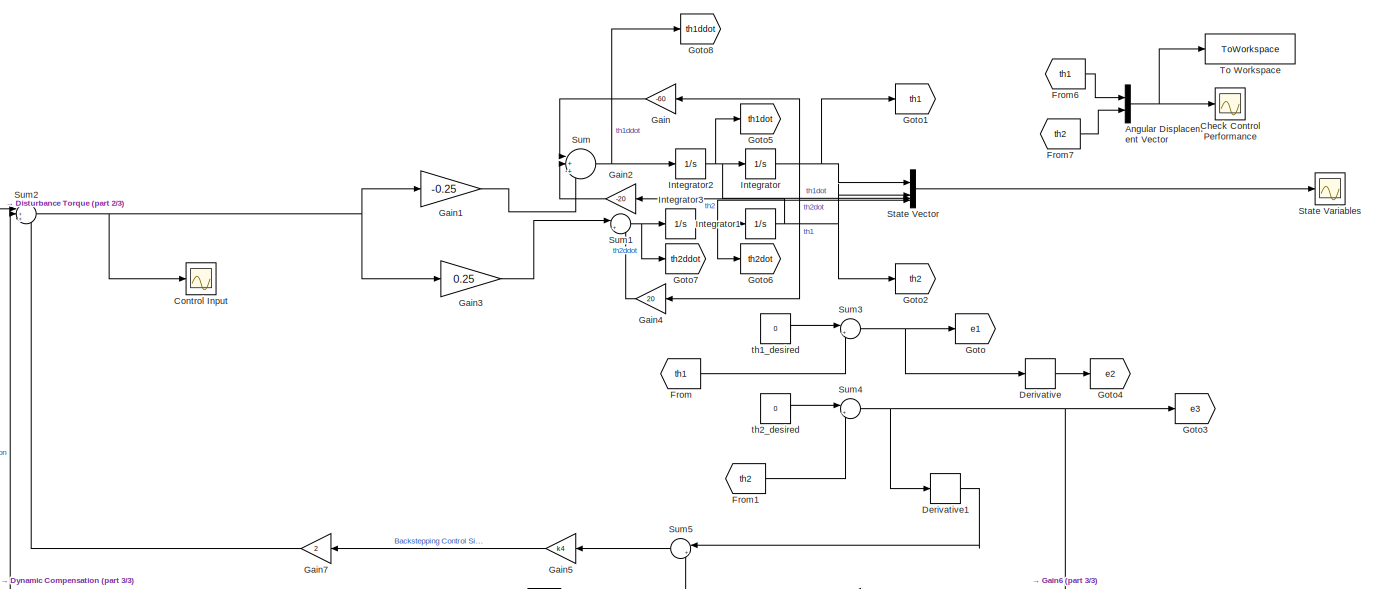
[diagram: root canvas - part 1/3, full width, middle band]
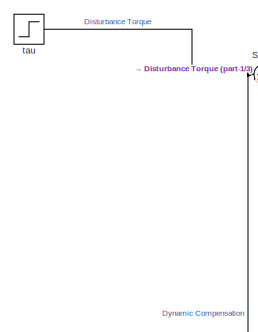
[diagram: root canvas - part 2/3, middle left region]
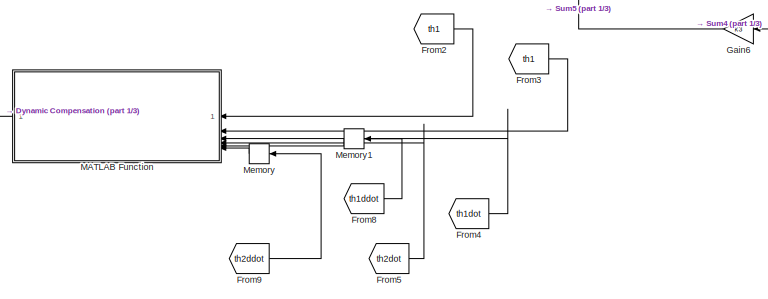
[diagram: root canvas - part 3/3, bottom center region]
MODEL slx_4d3194f2ad19
KIND model
CONFIG AbsTol = auto
CONFIG EnableMultiTasking = off
CONFIG FixedStep = auto
CONFIG MaxStep = 1e-4
CONFIG MinStep = auto
CONFIG RelTol = 1e-4
CONFIG SampleTimeConstraint = Unconstrained
CONFIG SolverName = ode45
CONFIG StartTime = 0.0
CONFIG StopTime = 10.0
BLOCK [Mux] Angular Displacement Vector
  DisplayOption = bar
  Inputs = 2
  NameLocation = left
BLOCK [Scope] Check Control Performance
  Floating = off
  NumInputPorts = 1
  ScopeSpecificationString = Simulink.scopes.TimeScopeBlockCfg('CurrentConfiguration', extmgr.ConfigurationSet(extmgr.Configuration('Core','General UI',true),extmgr.Configuration('Core','Source UI',true),extmgr.Configuration('Sources','WiredSimulink',true,'DataLoggingVariableName','ScopeData1'),extmgr.Configuration('Visuals','Time Domain',true,'SerializedDisplays',{struct('MinYLimReal','-0.00024','MaxYLimReal','0.00025','YLab...<+1399ch>
BLOCK [Scope] Control Input
  Floating = off
  NumInputPorts = 1
  ScopeSpecificationString = Simulink.scopes.TimeScopeBlockCfg('CurrentConfiguration', extmgr.ConfigurationSet(extmgr.Configuration('Core','General UI',true),extmgr.Configuration('Core','Source UI',true),extmgr.Configuration('Sources','WiredSimulink',true,'DataLoggingVariableName','ScopeData1'),extmgr.Configuration('Visuals','Time Domain',true,'SerializedDisplays',{struct('MinYLimReal','-0.36644','MaxYLimReal','0.59627','YLab...<+1363ch>
BLOCK [Derivative] Derivative
BLOCK [Derivative] Derivative1
BLOCK [From] From
  GotoTag = th1
  TagVisibility = global
BLOCK [From] From1
  GotoTag = th2
  TagVisibility = global
BLOCK [From] From2
  GotoTag = th1
  TagVisibility = global
BLOCK [From] From3
  GotoTag = th1
  TagVisibility = global
BLOCK [From] From4
  GotoTag = th1dot
  TagVisibility = global
BLOCK [From] From5
  GotoTag = th2dot
  TagVisibility = global
BLOCK [From] From6
  GotoTag = th1
  TagVisibility = global
BLOCK [From] From7
  GotoTag = th2
  TagVisibility = global
BLOCK [From] From8
  GotoTag = th1ddot
  TagVisibility = global
BLOCK [From] From9
  GotoTag = th2ddot
  TagVisibility = global
BLOCK [Gain] Gain
  Gain = -60
BLOCK [Gain] Gain1
  Gain = -0.25
BLOCK [Gain] Gain2
  Gain = -20
BLOCK [Gain] Gain3
  Gain = 0.25
BLOCK [Gain] Gain4
  Gain = 20
BLOCK [Gain] Gain5
  Gain = k4
BLOCK [Gain] Gain6
  Gain = k3
BLOCK [Gain] Gain7
  Gain = 2
BLOCK [Goto] Goto
  GotoTag = e1
  TagVisibility = global
BLOCK [Goto] Goto1
  GotoTag = th1
  TagVisibility = global
BLOCK [Goto] Goto2
  GotoTag = th2
  TagVisibility = global
BLOCK [Goto] Goto3
  GotoTag = e3
  TagVisibility = global
BLOCK [Goto] Goto4
  GotoTag = e2
  TagVisibility = global
BLOCK [Goto] Goto5
  GotoTag = th1dot
  TagVisibility = global
BLOCK [Goto] Goto6
  GotoTag = th2dot
  TagVisibility = global
BLOCK [Goto] Goto7
  GotoTag = th2ddot
  TagVisibility = global
BLOCK [Goto] Goto8
  GotoTag = th1ddot
  TagVisibility = global
BLOCK [Integrator] Integrator
BLOCK [Integrator] Integrator1
BLOCK [Integrator] Integrator2
BLOCK [Integrator] Integrator3
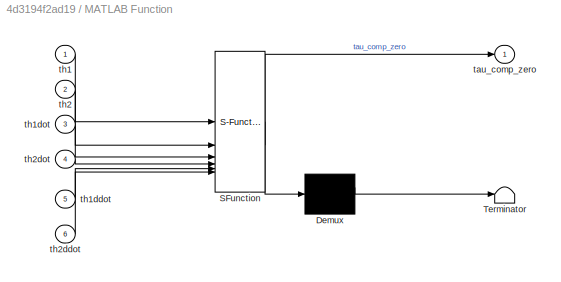
BLOCK [SubSystem] MATLAB Function
  ErrorFcn = Stateflow.Translate.translate
  LibrarySourceBlock = simulink/User-Defined\nFunctions/MATLAB Function
  PermitHierarchicalResolution = ExplicitOnly
  SFBlockType = MATLAB Function
  TreatAsAtomicUnit = on
BLOCK [Demux] MATLAB Function/ Demux 
  Outputs = 1
BLOCK [S-Function] MATLAB Function/ SFunction 
  EnableBusSupport = on
  FunctionName = sf_sfun
  PortCounts = [6 2]
  SFcnIsStateOwnerBlock = off
  SFunctionDeploymentMode = off
  Tag = Stateflow S-Function 2
BLOCK [Terminator] MATLAB Function/ Terminator 
BLOCK [Outport] MATLAB Function/tau_comp_zero
BLOCK [Inport] MATLAB Function/th1
BLOCK [Inport] MATLAB Function/th1ddot
  Port = 5
BLOCK [Inport] MATLAB Function/th1dot
  Port = 3
BLOCK [Inport] MATLAB Function/th2
  Port = 2
BLOCK [Inport] MATLAB Function/th2ddot
  Port = 6
BLOCK [Inport] MATLAB Function/th2dot
  Port = 4
BLOCK [Memory] Memory
BLOCK [Memory] Memory1
BLOCK [Scope] State Variables
  Floating = off
  NumInputPorts = 1
  ScopeSpecificationString = Simulink.scopes.TimeScopeBlockCfg('CurrentConfiguration', extmgr.ConfigurationSet(extmgr.Configuration('Core','General UI',true),extmgr.Configuration('Core','Source UI',true),extmgr.Configuration('Sources','WiredSimulink',true),extmgr.Configuration('Visuals','Time Domain',true,'SerializedDisplays',{struct('MinYLimReal','-0.00376','MaxYLimReal','0.00379','YLabelReal','','MinYLimMag','0.00000','MaxY...<+1374ch>
BLOCK [Mux] State Vector
  DisplayOption = bar
BLOCK [Sum] Sum
  Inputs = |+++
BLOCK [Sum] Sum1
  Inputs = |++
BLOCK [Sum] Sum2
  Inputs = |+++
BLOCK [Sum] Sum3
  Inputs = |+-
BLOCK [Sum] Sum4
  Inputs = |+-
BLOCK [Sum] Sum5
  Inputs = |++
BLOCK [ToWorkspace] To Workspace
  FixptAsFi = on
  MaxDataPoints = inf
  SampleTime = -1
  SaveFormat = Timeseries
  VariableName = simout
BLOCK [Step] tau
  SampleTime = 0
BLOCK [Constant] th1_desired
  Value = 0
BLOCK [Constant] th2_desired
  Value = 0
NET Angular Displacement Vector:1 -> Check Control Performance:1, To Workspace:1
LINE Derivative1:1 -> Sum5:1
LINE Derivative:1 -> Goto4:1
LINE From1:1 -> Sum4:2
LINE From2:1 -> MATLAB Function:1
LINE From3:1 -> MATLAB Function:2
LINE From4:1 -> MATLAB Function:3
LINE From5:1 -> MATLAB Function:4
LINE From6:1 -> Angular Displacement Vector:1
LINE From7:1 -> Angular Displacement Vector:2
LINE From8:1 -> Memory1:1
LINE From9:1 -> Memory:1
LINE From:1 -> Sum3:2
LINE Gain1:1 -> Sum:3
LINE Gain2:1 -> Sum:2
LINE Gain3:1 -> Sum1:1
LINE Gain4:1 -> Sum1:2
LINE Gain5:1 -> Gain7:1
LINE Gain6:1 -> Sum5:2
LINE Gain7:1 -> Sum2:3
LINE Gain:1 -> Sum:1
NET Integrator1:1 -> Gain2:1, Goto2:1, State Vector:2
NET Integrator2:1 -> Goto5:1, Integrator:1, State Vector:3
NET Integrator3:1 -> Goto6:1, Integrator1:1, State Vector:4
NET Integrator:1 -> Gain4:1, Gain:1, Goto1:1, State Vector:1
LINE MATLAB Function:1 -> Sum2:2
LINE Memory1:1 -> MATLAB Function:5
LINE Memory:1 -> MATLAB Function:6
LINE State Vector:1 -> State Variables:1
NET Sum1:1 -> Goto7:1, Integrator3:1
NET Sum2:1 -> Control Input:1, Gain1:1, Gain3:1
NET Sum3:1 -> Derivative:1, Goto:1
NET Sum4:1 -> Derivative1:1, Gain6:1, Goto3:1
LINE Sum5:1 -> Gain5:1
NET Sum:1 -> Goto8:1, Integrator2:1
LINE tau:1 -> Sum2:1
LINE th1_desired:1 -> Sum3:1
LINE th2_desired:1 -> Sum4:1
note: NET lines group one-source signal fan-out (src -> all destinations, sorted); 1:1 wires keep LINE
CHART MATLAB Function states=1 transitions=1
  STATE_LABEL 'eML_blk_kernel()'
  STATE_LABEL 'SCRIPT:\nfunction tau_comp_zero = fcn(th1,th2,th1dot,th2dot,th1ddot,th2ddot)\n%tau_comp=((cos(th2) + 2)*(80*sin(th1) - sin(th1 + th2) + 4*th1dot*th2dot*sin(th2)*(2*th1dot + th2dot)))/(4*(cos(th2)^2 - 2)) - ((- 4*th2dot*sin(th2)*th1dot^2 + 80*sin(th1 + th2))*(2*cos(th2) + 3))/(4*(cos(th2)^2 - 2));\nA=[0,0,1,0;0,0,0,1;-60,-20,0,0;20,0,0,0];\nB=[0;0;-0.25;0.25];\nxdot=[th1dot;th2dot;th1ddot;th2ddot];\nx=[t...<+61ch>'
CHART  states=0 transitions=0
